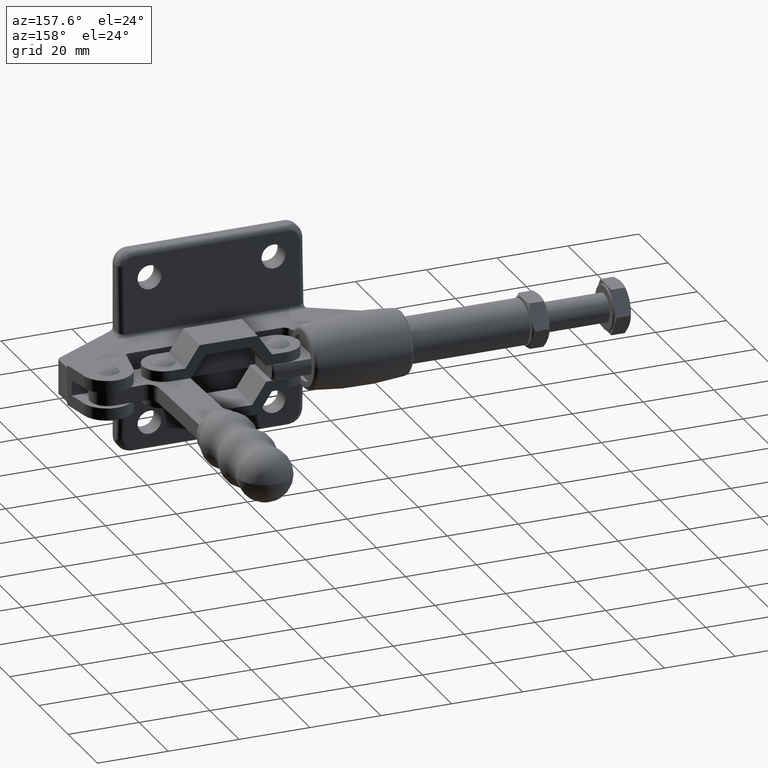
[diagram: clean part render]
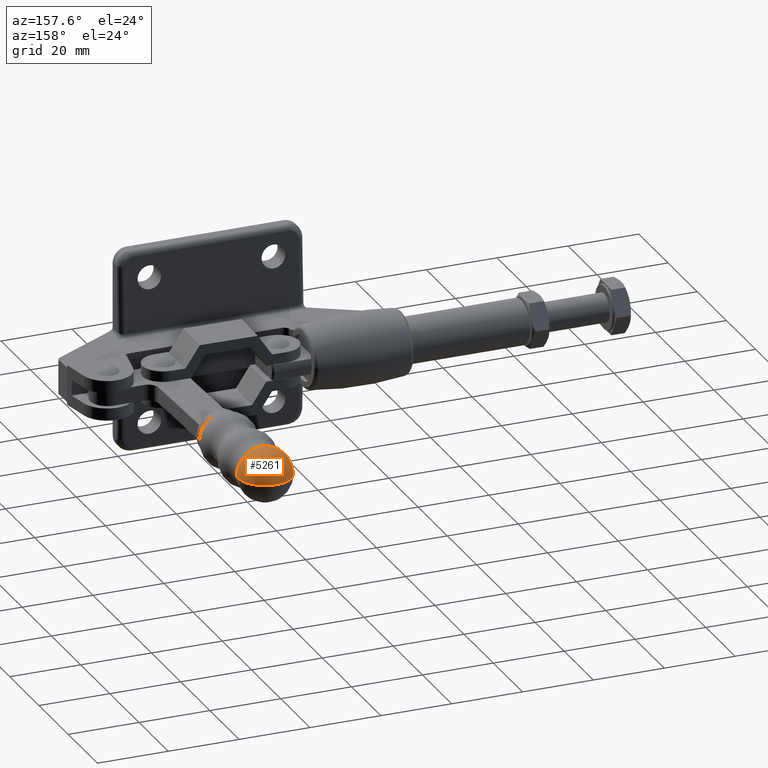
[diagram: same view with one face highlighted and labeled with its STEP entity id]
A machine part, auxiliary view. The second image highlights one B-rep face of the part: STEP entity #5261.
In plain terms, the highlighted spherical surface has radius 7.4635 mm.
Its self-contained STEP definition (entity closure, byte-faithful):
#341 = VERTEX_POINT ( 'NONE', #2191 ) ;
#693 = ORIENTED_EDGE ( 'NONE', *, *, #7700, .F. ) ;
#850 = DIRECTION ( 'NONE',  ( -0.02493062976513190900, 0.9996891835463230800, 2.613657436386049100E-033 ) ) ;
#903 = DIRECTION ( 'NONE',  ( 0.9996891835463229700, 0.02493062976513207500, 0.0000000000000000000 ) ) ;
#1081 = DIRECTION ( 'NONE',  ( 1.071046855140826600E-032, -2.347368311013704000E-033, 1.000000000000000000 ) ) ;
#1400 = EDGE_CURVE ( 'NONE', #341, #7909, #9296, .T. ) ;
#1631 = AXIS2_PLACEMENT_3D ( 'NONE', #5299, #850, #6043 ) ;
#1942 = CARTESIAN_POINT ( 'NONE',  ( -24.17419659072641400, 88.32397167839035000, -0.05000000000013760800 ) ) ;
#1973 = FACE_OUTER_BOUND ( 'NONE', #8060, .T. ) ;
#2191 = CARTESIAN_POINT ( 'NONE',  ( -24.17419659072642100, 88.32397167839035000, 7.109688757697967700 ) ) ;
#2378 = CARTESIAN_POINT ( 'NONE',  ( -24.22674169091413200, 90.43096892639071900, -0.05000000000013760800 ) ) ;
#2473 = VERTEX_POINT ( 'NONE', #4465 ) ;
#2499 = AXIS2_PLACEMENT_3D ( 'NONE', #5531, #1081, #6287 ) ;
#2582 = DIRECTION ( 'NONE',  ( 0.0000000000000000000, 0.0000000000000000000, 1.000000000000000000 ) ) ;
#2694 = VERTEX_POINT ( 'NONE', #3207 ) ;
#2711 = DIRECTION ( 'NONE',  ( 1.224266158772236000E-016, 3.053121594259655900E-018, -1.000000000000000000 ) ) ;
#2945 = AXIS2_PLACEMENT_3D ( 'NONE', #2378, #5352, #903 ) ;
#3207 = CARTESIAN_POINT ( 'NONE',  ( -24.41281062652461700, 97.89211628111732500, -0.05000000000013760800 ) ) ;
#3519 = AXIS2_PLACEMENT_3D ( 'NONE', #7133, #2711, #7902 ) ;
#3822 = EDGE_CURVE ( 'NONE', #7909, #2694, #5011, .T. ) ;
#4185 = ORIENTED_EDGE ( 'NONE', *, *, #3822, .T. ) ;
#4465 = CARTESIAN_POINT ( 'NONE',  ( -31.33165999935538800, 88.14547612873859400, -0.05000000000013848200 ) ) ;
#4952 = DIRECTION ( 'NONE',  ( -0.02493062976513190900, 0.9996891835463230800, 2.613657436386049100E-033 ) ) ;
#5011 = CIRCLE ( 'NONE', #2499, 7.463467123109940500 ) ;
#5261 = ADVANCED_FACE ( 'NONE', ( #1973 ), #7194, .T. ) ;
#5299 = CARTESIAN_POINT ( 'NONE',  ( -24.17419659072641400, 88.32397167839035000, -0.05000000000013760800 ) ) ;
#5302 = CIRCLE ( 'NONE', #1631, 7.159688757698106100 ) ;
#5352 = DIRECTION ( 'NONE',  ( -6.516012587942482700E-035, 2.612845068650545000E-033, -1.000000000000000000 ) ) ;
#5520 = ORIENTED_EDGE ( 'NONE', *, *, #6291, .T. ) ;
#5531 = CARTESIAN_POINT ( 'NONE',  ( -24.22674169091413200, 90.43096892639071900, -0.05000000000013760800 ) ) ;
#6043 = DIRECTION ( 'NONE',  ( 0.0000000000000000000, 0.0000000000000000000, 1.000000000000000000 ) ) ;
#6287 = DIRECTION ( 'NONE',  ( 1.000000000000000000, 0.0000000000000000000, 0.0000000000000000000 ) ) ;
#6291 = EDGE_CURVE ( 'NONE', #2473, #341, #5302, .T. ) ;
#7058 = CIRCLE ( 'NONE', #3519, 7.463467123109937000 ) ;
#7133 = CARTESIAN_POINT ( 'NONE',  ( -24.22674169091413200, 90.43096892639071900, -0.05000000000013760800 ) ) ;
#7194 = SPHERICAL_SURFACE ( 'NONE', #2945, 7.463467123109939600 ) ;
#7700 = EDGE_CURVE ( 'NONE', #2473, #2694, #7058, .T. ) ;
#7815 = ORIENTED_EDGE ( 'NONE', *, *, #1400, .T. ) ;
#7902 = DIRECTION ( 'NONE',  ( -1.000000000000000000, 0.0000000000000000000, -1.225697880013518500E-016 ) ) ;
#7909 = VERTEX_POINT ( 'NONE', #8188 ) ;
#8060 = EDGE_LOOP ( 'NONE', ( #693, #5520, #7815, #4185 ) ) ;
#8188 = CARTESIAN_POINT ( 'NONE',  ( -17.01673318209740800, 88.50246722804209300, -0.05000000000013760800 ) ) ;
#8556 = AXIS2_PLACEMENT_3D ( 'NONE', #1942, #4952, #2582 ) ;
#9296 = CIRCLE ( 'NONE', #8556, 7.159688757698106100 ) ;